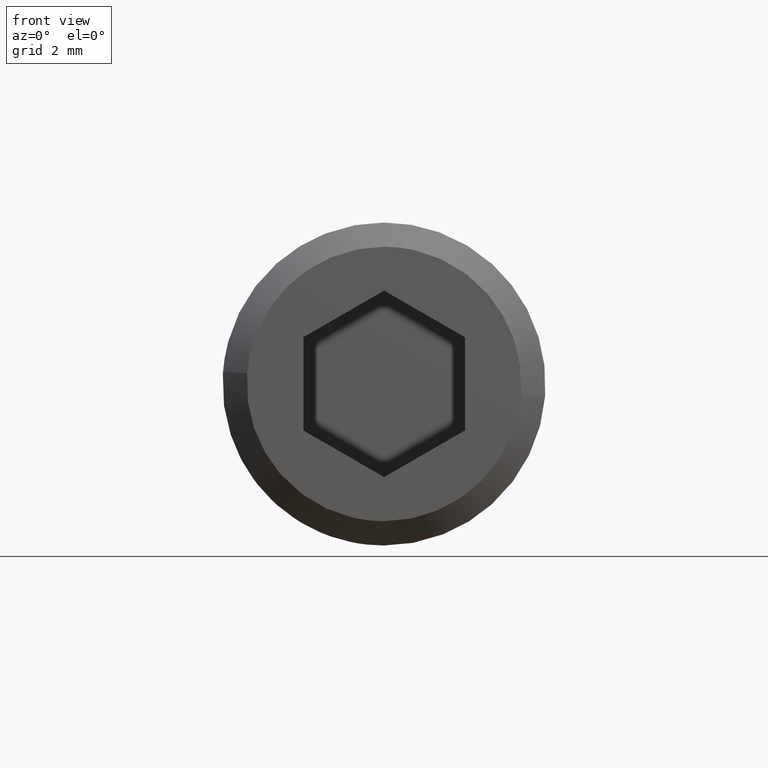
[diagram: clean part render]
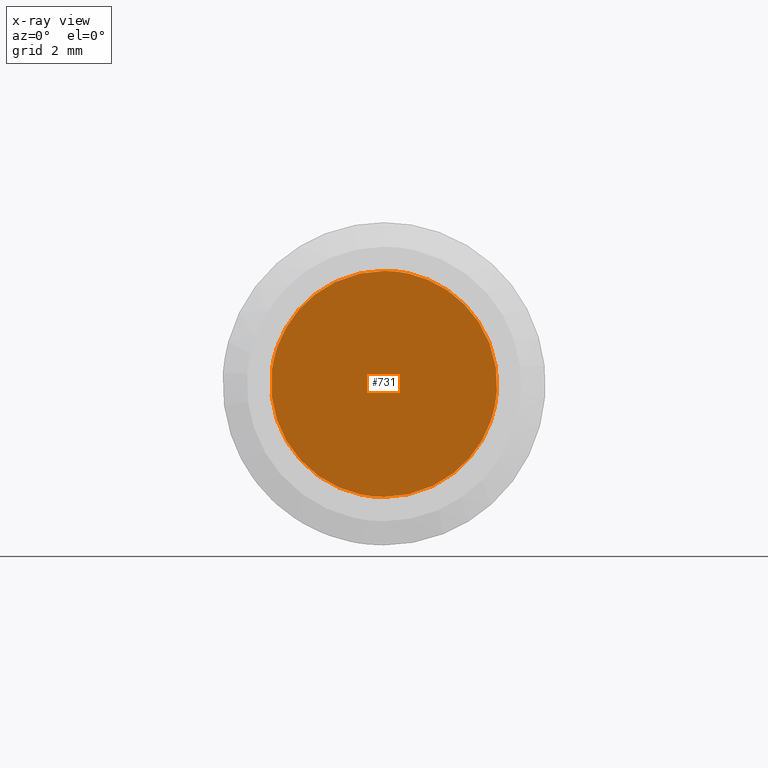
[diagram: x-ray — body ghosted, one internal face saturated and labeled with its STEP entity id]
A machine part, front view, then the same camera in x-ray: the body is ghosted and one INTERNAL B-rep face — a face not visible from any outside direction — is saturated and labeled: STEP entity #731.
In plain terms, the highlighted face is a freeform B-spline surface patch.
Its self-contained STEP definition (entity closure, byte-faithful):
#70=CARTESIAN_POINT('',(-3.475533965483620,-4.999999999999990,0.413114578224763));
#71=VERTEX_POINT('',#70);
#72=CARTESIAN_POINT('',(0.0,-5.0,-3.500000000000000));
#73=VERTEX_POINT('',#72);
#74=CARTESIAN_POINT('',(-3.475533965483621,-4.999999999999990,0.413114578224763));
#75=CARTESIAN_POINT('',(-3.500000000000000,-5.0,0.207281769530779));
#76=CARTESIAN_POINT('',(-3.500000000000000,-5.0,0.0));
#77=CARTESIAN_POINT('',(-3.500000000000000,-4.999999999999999,-3.500000000000000));
#78=CARTESIAN_POINT('',(0.0,-5.0,-3.500000000000000));
#86=(BOUNDED_CURVE()B_SPLINE_CURVE(2,(#74,#75,#76,#77,#78),.UNSPECIFIED.,.F.,.U.)B_SPLINE_CURVE_WITH_KNOTS((3,2,3),(0.229562728468342,0.250000000000000,0.500000000000000),.UNSPECIFIED.)CURVE()GEOMETRIC_REPRESENTATION_ITEM()RATIONAL_B_SPLINE_CURVE((0.956027253906216,0.976056247029312,1.0,0.707106781186547,1.0))REPRESENTATION_ITEM(''));
#87=EDGE_CURVE('',#71,#73,#86,.T.);
#89=CARTESIAN_POINT('',(3.493472138411033,-5.000000000000004,-0.213664264944095));
#90=VERTEX_POINT('',#89);
#91=CARTESIAN_POINT('',(0.0,-5.0,-3.500000000000000));
#92=CARTESIAN_POINT('',(3.292476543955328,-5.0,-3.499999999999999));
#93=CARTESIAN_POINT('',(3.493472138411033,-5.000000000000004,-0.213664264944096));
#101=(BOUNDED_CURVE()B_SPLINE_CURVE(2,(#91,#92,#93),.UNSPECIFIED.,.F.,.U.)B_SPLINE_CURVE_WITH_KNOTS((3,3),(0.500000000000000,0.739333239989919),.UNSPECIFIED.)CURVE()GEOMETRIC_REPRESENTATION_ITEM()RATIONAL_B_SPLINE_CURVE((1.0,0.719603667881200,0.976072636940655))REPRESENTATION_ITEM(''));
#102=EDGE_CURVE('',#73,#90,#101,.T.);
#173=CARTESIAN_POINT('',(0.0,-5.0,3.500000000000000));
#174=VERTEX_POINT('',#173);
#175=CARTESIAN_POINT('',(0.0,-5.0,3.500000000000000));
#176=CARTESIAN_POINT('',(-3.108615563391854,-5.0,3.500000000000000));
#177=CARTESIAN_POINT('',(-3.475533965483620,-4.999999999999990,0.413114578224763));
#185=(BOUNDED_CURVE()B_SPLINE_CURVE(2,(#175,#176,#177),.UNSPECIFIED.,.F.,.U.)B_SPLINE_CURVE_WITH_KNOTS((3,3),(0.0,0.229562728468342),.UNSPECIFIED.)CURVE()GEOMETRIC_REPRESENTATION_ITEM()RATIONAL_B_SPLINE_CURVE((1.0,0.731050534157235,0.956027253906216))REPRESENTATION_ITEM(''));
#186=EDGE_CURVE('',#174,#71,#185,.T.);
#220=CARTESIAN_POINT('',(3.493472138411033,-5.000000000000004,-0.213664264944096));
#221=CARTESIAN_POINT('',(3.500000000000001,-5.0,-0.106931851947684));
#222=CARTESIAN_POINT('',(3.500000000000000,-5.0,0.0));
#223=CARTESIAN_POINT('',(3.500000000000000,-4.999999999999999,3.500000000000000));
#224=CARTESIAN_POINT('',(0.0,-5.0,3.500000000000000));
#232=(BOUNDED_CURVE()B_SPLINE_CURVE(2,(#220,#221,#222,#223,#224),.UNSPECIFIED.,.F.,.U.)B_SPLINE_CURVE_WITH_KNOTS((3,2,3),(0.739333239989919,0.750000000000000,1.0),.UNSPECIFIED.)CURVE()GEOMETRIC_REPRESENTATION_ITEM()RATIONAL_B_SPLINE_CURVE((0.976072636940655,0.987503113305347,1.0,0.707106781186547,1.0))REPRESENTATION_ITEM(''));
#233=EDGE_CURVE('',#90,#174,#232,.T.);
#720=CARTESIAN_POINT('',(-3.849586525874280,-5.0,3.849649986432642));
#721=CARTESIAN_POINT('',(3.849564808921958,-5.0,3.849649986432642));
#722=CARTESIAN_POINT('',(-3.849586525874280,-5.0,-3.849650174187273));
#723=CARTESIAN_POINT('',(3.849564808921958,-5.0,-3.849650174187273));
#724=B_SPLINE_SURFACE_WITH_KNOTS('',1,1,((#720,#722),(#721,#723)),.UNSPECIFIED.,.F.,.F.,.U.,(2,2),(2,2),(0.0,7.699151334796238),(0.0,7.699300160619915),.UNSPECIFIED.);
#725=ORIENTED_EDGE('',*,*,#233,.F.);
#726=ORIENTED_EDGE('',*,*,#102,.F.);
#727=ORIENTED_EDGE('',*,*,#87,.F.);
#728=ORIENTED_EDGE('',*,*,#186,.F.);
#729=EDGE_LOOP('',(#725,#726,#727,#728));
#730=FACE_OUTER_BOUND('',#729,.T.);
#731=ADVANCED_FACE('',(#730),#724,.T.);